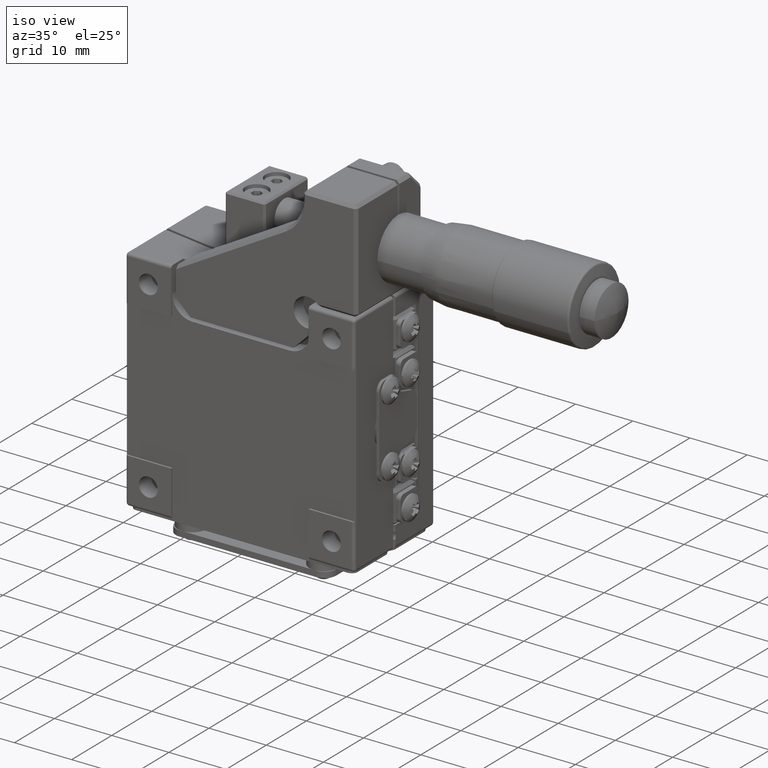
[diagram: clean part render]
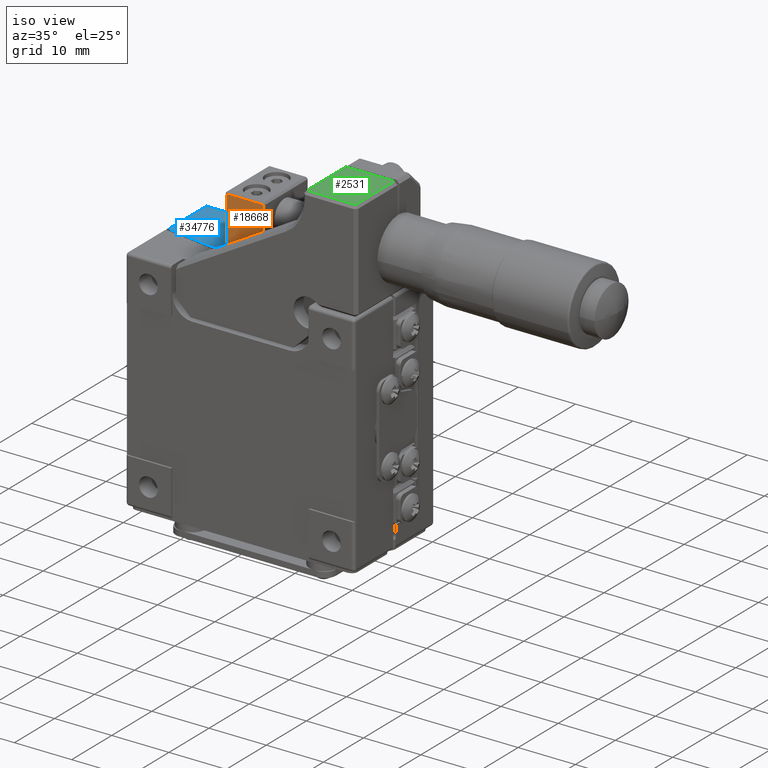
[diagram: same view with three faces highlighted in distinct colors, each labeled with its STEP entity id]
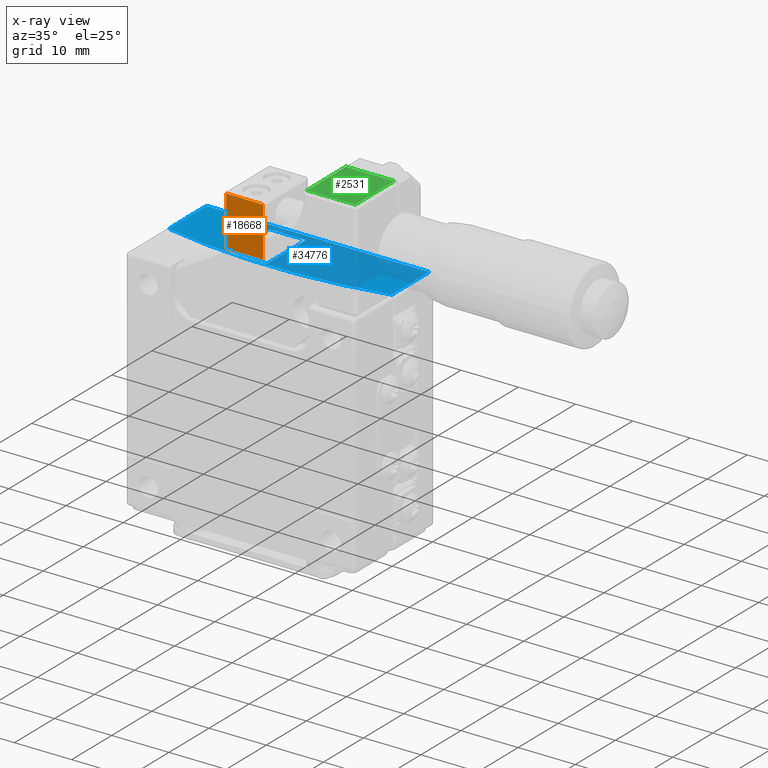
[diagram: x-ray of the same camera — body ghosted, the three highlighted faces saturated]
A machine part, iso view with three faces highlighted in distinct colors.
The next image is the same camera in x-ray (body ghosted, the three faces saturated) — at least one of them is partly hidden behind the body in this view.
Their STEP definitions:

[orange] entity #18668 — the highlighted planar face has unit normal (0, -1, 0).
#178 = DIRECTION ( 'NONE',  ( 0.000000000000000000, 0.000000000000000000, -1.000000000000000000 ) ) ;
#1885 = CARTESIAN_POINT ( 'NONE',  ( -10.70441094360692169, -1.809045226130659989, 29.69999999999999929 ) ) ;
#2154 = ORIENTED_EDGE ( 'NONE', *, *, #36618, .T. ) ;
#3524 = VECTOR ( 'NONE', #178, 1000.000000000000000 ) ;
#4241 = ORIENTED_EDGE ( 'NONE', *, *, #41981, .T. ) ;
#6657 = DIRECTION ( 'NONE',  ( -1.000000000000000000, 0.000000000000000000, 0.000000000000000000 ) ) ;
#7177 = EDGE_LOOP ( 'NONE', ( #7848, #2154, #16322, #4241 ) ) ;
#7848 = ORIENTED_EDGE ( 'NONE', *, *, #34115, .T. ) ;
#8545 = DIRECTION ( 'NONE',  ( 0.000000000000000000, -1.000000000000000000, 0.000000000000000000 ) ) ;
#10393 = CARTESIAN_POINT ( 'NONE',  ( -11.00441094360692063, -1.809045226130659989, 29.69999999999999929 ) ) ;
#11729 = EDGE_CURVE ( 'NONE', #28080, #44476, #41591, .T. ) ;
#11902 = LINE ( 'NONE', #38965, #25835 ) ;
#12270 = PLANE ( 'NONE',  #45069 ) ;
#16322 = ORIENTED_EDGE ( 'NONE', *, *, #11729, .T. ) ;
#18668 = ADVANCED_FACE ( 'NONE', ( #42301 ), #12270, .T. ) ;
#23931 = DIRECTION ( 'NONE',  ( 0.000000000000000000, 0.000000000000000000, -1.000000000000000000 ) ) ;
#25835 = VECTOR ( 'NONE', #27022, 1000.000000000000000 ) ;
#27022 = DIRECTION ( 'NONE',  ( 0.000000000000000000, 0.000000000000000000, 1.000000000000000000 ) ) ;
#28080 = VERTEX_POINT ( 'NONE', #33153 ) ;
#29061 = VERTEX_POINT ( 'NONE', #1885 ) ;
#29805 = CARTESIAN_POINT ( 'NONE',  ( -4.304410943606924889, -1.809045226130659989, 21.00000000000000000 ) ) ;
#30881 = CARTESIAN_POINT ( 'NONE',  ( -11.00441094360692063, -1.809045226130659989, 30.00000000000000000 ) ) ;
#31779 = VECTOR ( 'NONE', #41362, 1000.000000000000000 ) ;
#33153 = CARTESIAN_POINT ( 'NONE',  ( -10.70441094360692169, -1.809045226130659989, 21.00000000000000000 ) ) ;
#34115 = EDGE_CURVE ( 'NONE', #41872, #29061, #36951, .T. ) ;
#34144 = CARTESIAN_POINT ( 'NONE',  ( -11.00441094360692063, -1.809045226130659989, 21.00000000000000000 ) ) ;
#34217 = LINE ( 'NONE', #49137, #3524 ) ;
#36618 = EDGE_CURVE ( 'NONE', #29061, #28080, #34217, .T. ) ;
#36951 = LINE ( 'NONE', #10393, #45369 ) ;
#38965 = CARTESIAN_POINT ( 'NONE',  ( -4.304410943606924889, -1.809045226130659989, 30.00000000000000000 ) ) ;
#41362 = DIRECTION ( 'NONE',  ( 1.000000000000000000, 0.000000000000000000, 0.000000000000000000 ) ) ;
#41591 = LINE ( 'NONE', #34144, #31779 ) ;
#41872 = VERTEX_POINT ( 'NONE', #45178 ) ;
#41981 = EDGE_CURVE ( 'NONE', #44476, #41872, #11902, .T. ) ;
#42301 = FACE_OUTER_BOUND ( 'NONE', #7177, .T. ) ;
#44476 = VERTEX_POINT ( 'NONE', #29805 ) ;
#45069 = AXIS2_PLACEMENT_3D ( 'NONE', #30881, #8545, #23931 ) ;
#45178 = CARTESIAN_POINT ( 'NONE',  ( -4.304410943606924889, -1.809045226130659989, 29.69999999999999929 ) ) ;
#45369 = VECTOR ( 'NONE', #6657, 1000.000000000000000 ) ;
#49137 = CARTESIAN_POINT ( 'NONE',  ( -10.70441094360692169, -1.809045226130659989, 21.00000000000000000 ) ) ;

[blue] entity #34776 — the highlighted planar face has unit normal (0, 0, 1).
#522 = CARTESIAN_POINT ( 'NONE',  ( -3.104410943606925155, 90.69095477386940729, 20.00000000000000000 ) ) ;
#556 = CARTESIAN_POINT ( 'NONE',  ( -4.304410943606924889, 8.890954773869330197, 20.00000000000000000 ) ) ;
#1102 = VERTEX_POINT ( 'NONE', #556 ) ;
#2666 = AXIS2_PLACEMENT_3D ( 'NONE', #17984, #43828, #40099 ) ;
#2825 = CARTESIAN_POINT ( 'NONE',  ( -22.60441094360690073, 0.7812778753285429811, 20.00000000000000000 ) ) ;
#3054 = LINE ( 'NONE', #44544, #43469 ) ;
#3142 = CARTESIAN_POINT ( 'NONE',  ( -4.304410943606924889, -0.8090452261306499970, 20.00000000000000000 ) ) ;
#3312 = ORIENTED_EDGE ( 'NONE', *, *, #44161, .T. ) ;
#4247 = PLANE ( 'NONE',  #18475 ) ;
#4403 = DIRECTION ( 'NONE',  ( -1.000000000000000000, 0.000000000000000000, 0.000000000000000000 ) ) ;
#5417 = LINE ( 'NONE', #20561, #48950 ) ;
#5551 = CARTESIAN_POINT ( 'NONE',  ( 16.39558905639309927, 10.19095477386933979, 20.00000000000000000 ) ) ;
#6020 = LINE ( 'NONE', #6273, #44991 ) ;
#6273 = CARTESIAN_POINT ( 'NONE',  ( -4.304410943606924889, 9.190954773869341565, 20.00000000000000000 ) ) ;
#6332 = DIRECTION ( 'NONE',  ( -3.540332450333114893E-16, 1.000000000000000000, 0.000000000000000000 ) ) ;
#8228 = VECTOR ( 'NONE', #6332, 1000.000000000000000 ) ;
#8961 = DIRECTION ( 'NONE',  ( -3.540332450333114893E-16, -1.000000000000000000, 0.000000000000000000 ) ) ;
#10259 = ORIENTED_EDGE ( 'NONE', *, *, #39374, .T. ) ;
#10548 = LINE ( 'NONE', #40352, #8228 ) ;
#10901 = ORIENTED_EDGE ( 'NONE', *, *, #37510, .T. ) ;
#11318 = ORIENTED_EDGE ( 'NONE', *, *, #26157, .T. ) ;
#11751 = DIRECTION ( 'NONE',  ( 0.000000000000000000, 1.000000000000000000, 7.885106708985490266E-17 ) ) ;
#11981 = DIRECTION ( 'NONE',  ( 1.000000000000000000, 0.000000000000000000, 0.000000000000000000 ) ) ;
#12363 = VERTEX_POINT ( 'NONE', #38957 ) ;
#12460 = VECTOR ( 'NONE', #11751, 1000.000000000000000 ) ;
#12931 = VERTEX_POINT ( 'NONE', #42503 ) ;
#15204 = ORIENTED_EDGE ( 'NONE', *, *, #22564, .T. ) ;
#15692 = DIRECTION ( 'NONE',  ( 0.000000000000000000, 0.000000000000000000, 1.000000000000000000 ) ) ;
#15907 = EDGE_CURVE ( 'NONE', #17721, #31158, #5417, .T. ) ;
#17142 = LINE ( 'NONE', #20126, #19638 ) ;
#17244 = ORIENTED_EDGE ( 'NONE', *, *, #38112, .T. ) ;
#17721 = VERTEX_POINT ( 'NONE', #5551 ) ;
#17984 = CARTESIAN_POINT ( 'NONE',  ( -3.104410943606925155, 90.69095477386940729, 20.00000000000000000 ) ) ;
#18475 = AXIS2_PLACEMENT_3D ( 'NONE', #522, #15692, #11981 ) ;
#19638 = VECTOR ( 'NONE', #8961, 1000.000000000000000 ) ;
#19855 = VECTOR ( 'NONE', #27490, 1000.000000000000000 ) ;
#20126 = CARTESIAN_POINT ( 'NONE',  ( -22.60441094360690073, 90.69095477386940729, 20.00000000000000000 ) ) ;
#20296 = LINE ( 'NONE', #31713, #19855 ) ;
#20561 = CARTESIAN_POINT ( 'NONE',  ( -3.104410943606925155, 10.19095477386933979, 20.00000000000000000 ) ) ;
#22564 = EDGE_CURVE ( 'NONE', #12363, #1102, #20296, .T. ) ;
#23124 = FACE_BOUND ( 'NONE', #32978, .T. ) ;
#23145 = LINE ( 'NONE', #45747, #12460 ) ;
#24071 = CIRCLE ( 'NONE', #2666, 92.00000000000000000 ) ;
#25652 = DIRECTION ( 'NONE',  ( -1.000000000000000000, 0.000000000000000000, 0.000000000000000000 ) ) ;
#26157 = EDGE_CURVE ( 'NONE', #1102, #38927, #6020, .T. ) ;
#26605 = EDGE_CURVE ( 'NONE', #31158, #47207, #17142, .T. ) ;
#27477 = CARTESIAN_POINT ( 'NONE',  ( 16.39558905639309927, 0.7812778753285429811, 20.00000000000000000 ) ) ;
#27490 = DIRECTION ( 'NONE',  ( 1.000000000000000000, 0.000000000000000000, 0.000000000000000000 ) ) ;
#27881 = DIRECTION ( 'NONE',  ( 0.000000000000000000, -1.000000000000000000, -7.885106708985490266E-17 ) ) ;
#31158 = VERTEX_POINT ( 'NONE', #36331 ) ;
#31713 = CARTESIAN_POINT ( 'NONE',  ( -11.00441094360692063, 8.890954773869340855, 20.00000000000000000 ) ) ;
#32978 = EDGE_LOOP ( 'NONE', ( #3312, #10901, #15204, #11318 ) ) ;
#33406 = ORIENTED_EDGE ( 'NONE', *, *, #26605, .T. ) ;
#33513 = VERTEX_POINT ( 'NONE', #27477 ) ;
#34776 = ADVANCED_FACE ( 'NONE', ( #23124, #38290 ), #4247, .T. ) ;
#36331 = CARTESIAN_POINT ( 'NONE',  ( -22.60441094360690073, 10.19095477386933979, 20.00000000000000000 ) ) ;
#37510 = EDGE_CURVE ( 'NONE', #12931, #12363, #23145, .T. ) ;
#38112 = EDGE_CURVE ( 'NONE', #47207, #33513, #24071, .T. ) ;
#38209 = EDGE_LOOP ( 'NONE', ( #10259, #45265, #33406, #17244 ) ) ;
#38290 = FACE_OUTER_BOUND ( 'NONE', #38209, .T. ) ;
#38927 = VERTEX_POINT ( 'NONE', #3142 ) ;
#38957 = CARTESIAN_POINT ( 'NONE',  ( -10.70441094360692169, 8.890954773869330197, 20.00000000000000000 ) ) ;
#39374 = EDGE_CURVE ( 'NONE', #33513, #17721, #10548, .T. ) ;
#40099 = DIRECTION ( 'NONE',  ( 1.000000000000000000, 0.000000000000000000, 0.000000000000000000 ) ) ;
#40352 = CARTESIAN_POINT ( 'NONE',  ( 16.39558905639304953, 90.69095477386940729, 20.00000000000000000 ) ) ;
#42503 = CARTESIAN_POINT ( 'NONE',  ( -10.70441094360692169, -0.8090452261306549930, 20.00000000000000000 ) ) ;
#43469 = VECTOR ( 'NONE', #25652, 1000.000000000000000 ) ;
#43828 = DIRECTION ( 'NONE',  ( 0.000000000000000000, 0.000000000000000000, 1.000000000000000000 ) ) ;
#44161 = EDGE_CURVE ( 'NONE', #38927, #12931, #3054, .T. ) ;
#44544 = CARTESIAN_POINT ( 'NONE',  ( -11.00441094360692063, -0.8090452261306549930, 20.00000000000000000 ) ) ;
#44991 = VECTOR ( 'NONE', #27881, 1000.000000000000000 ) ;
#45265 = ORIENTED_EDGE ( 'NONE', *, *, #15907, .T. ) ;
#45747 = CARTESIAN_POINT ( 'NONE',  ( -10.70441094360692169, 9.190954773869341565, 20.00000000000000000 ) ) ;
#47207 = VERTEX_POINT ( 'NONE', #2825 ) ;
#48950 = VECTOR ( 'NONE', #4403, 1000.000000000000000 ) ;

[green] entity #2531 — the highlighted planar face has unit normal (0, 0, 1).
#2531 = ADVANCED_FACE ( 'NONE', ( #37501 ), #21851, .T. ) ;
#3145 = ORIENTED_EDGE ( 'NONE', *, *, #42151, .T. ) ;
#3479 = LINE ( 'NONE', #33774, #45017 ) ;
#4447 = VECTOR ( 'NONE', #49119, 1000.000000000000000 ) ;
#5195 = ORIENTED_EDGE ( 'NONE', *, *, #5974, .T. ) ;
#5974 = EDGE_CURVE ( 'NONE', #12660, #27265, #32104, .T. ) ;
#8415 = DIRECTION ( 'NONE',  ( 0.000000000000000000, -1.000000000000000000, 0.000000000000000000 ) ) ;
#9498 = VERTEX_POINT ( 'NONE', #39030 ) ;
#9712 = CARTESIAN_POINT ( 'NONE',  ( 16.39558905639290032, 1.440954773869332017, 37.70170592217080241 ) ) ;
#9791 = EDGE_CURVE ( 'NONE', #9498, #35823, #11903, .T. ) ;
#10472 = DIRECTION ( 'NONE',  ( 1.000000000000000000, 0.000000000000000000, 0.000000000000000000 ) ) ;
#11903 = LINE ( 'NONE', #22803, #11933 ) ;
#11933 = VECTOR ( 'NONE', #8415, 1000.000000000000000 ) ;
#12660 = VERTEX_POINT ( 'NONE', #28889 ) ;
#14707 = AXIS2_PLACEMENT_3D ( 'NONE', #22348, #18148, #33281 ) ;
#17836 = CARTESIAN_POINT ( 'NONE',  ( -14.60543594360692055, 1.440954773869332017, 37.70170592217080241 ) ) ;
#18148 = DIRECTION ( 'NONE',  ( 0.000000000000000000, 0.000000000000000000, 1.000000000000000000 ) ) ;
#21851 = PLANE ( 'NONE',  #14707 ) ;
#22348 = CARTESIAN_POINT ( 'NONE',  ( 16.89558905639290032, -8.809045226130670869, 37.70170592217080241 ) ) ;
#22727 = ORIENTED_EDGE ( 'NONE', *, *, #45052, .T. ) ;
#22803 = CARTESIAN_POINT ( 'NONE',  ( 7.895589056392889660, -8.809045226130670869, 37.70170592217080241 ) ) ;
#25519 = LINE ( 'NONE', #17836, #4447 ) ;
#27265 = VERTEX_POINT ( 'NONE', #9712 ) ;
#28381 = DIRECTION ( 'NONE',  ( 0.000000000000000000, 1.000000000000000000, 0.000000000000000000 ) ) ;
#28889 = CARTESIAN_POINT ( 'NONE',  ( 16.39558905639290032, -8.309045226130670869, 37.70170592217080241 ) ) ;
#32104 = LINE ( 'NONE', #47265, #46527 ) ;
#33281 = DIRECTION ( 'NONE',  ( 1.000000000000000000, 0.000000000000000000, 0.000000000000000000 ) ) ;
#33774 = CARTESIAN_POINT ( 'NONE',  ( 16.89558905639290032, -8.309045226130670869, 37.70170592217080241 ) ) ;
#35823 = VERTEX_POINT ( 'NONE', #48590 ) ;
#37501 = FACE_OUTER_BOUND ( 'NONE', #38622, .T. ) ;
#38622 = EDGE_LOOP ( 'NONE', ( #3145, #45026, #22727, #5195 ) ) ;
#39030 = CARTESIAN_POINT ( 'NONE',  ( 7.895589056392889660, 1.440954773869332017, 37.70170592217080241 ) ) ;
#42151 = EDGE_CURVE ( 'NONE', #27265, #9498, #25519, .T. ) ;
#45017 = VECTOR ( 'NONE', #10472, 1000.000000000000000 ) ;
#45026 = ORIENTED_EDGE ( 'NONE', *, *, #9791, .T. ) ;
#45052 = EDGE_CURVE ( 'NONE', #35823, #12660, #3479, .T. ) ;
#46527 = VECTOR ( 'NONE', #28381, 1000.000000000000000 ) ;
#47265 = CARTESIAN_POINT ( 'NONE',  ( 16.39558905639290032, 1.440954773869332017, 37.70170592217080241 ) ) ;
#48590 = CARTESIAN_POINT ( 'NONE',  ( 7.895589056392889660, -8.309045226130670869, 37.70170592217080241 ) ) ;
#49119 = DIRECTION ( 'NONE',  ( -1.000000000000000000, 0.000000000000000000, 0.000000000000000000 ) ) ;